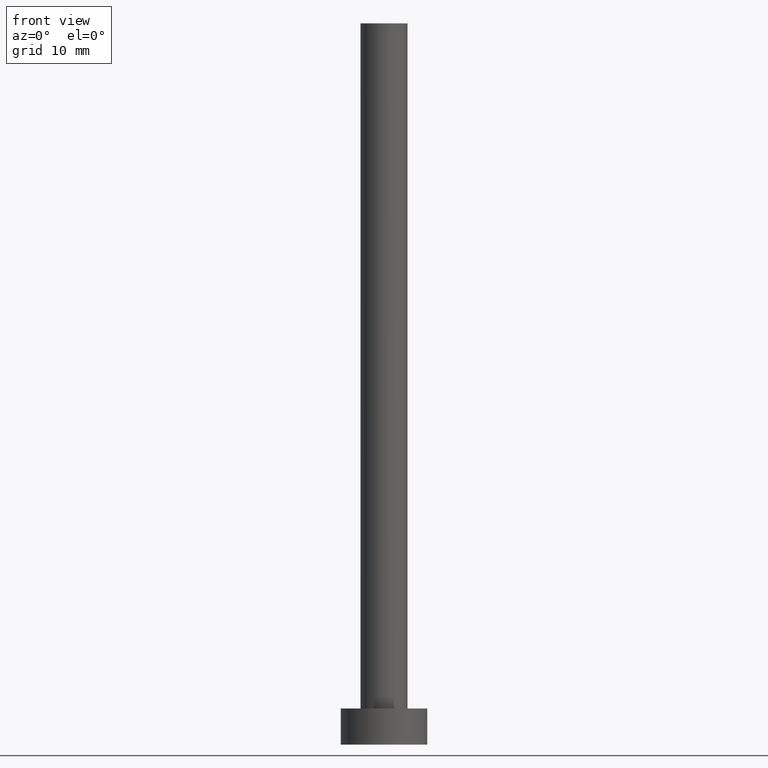
[diagram: clean part render]
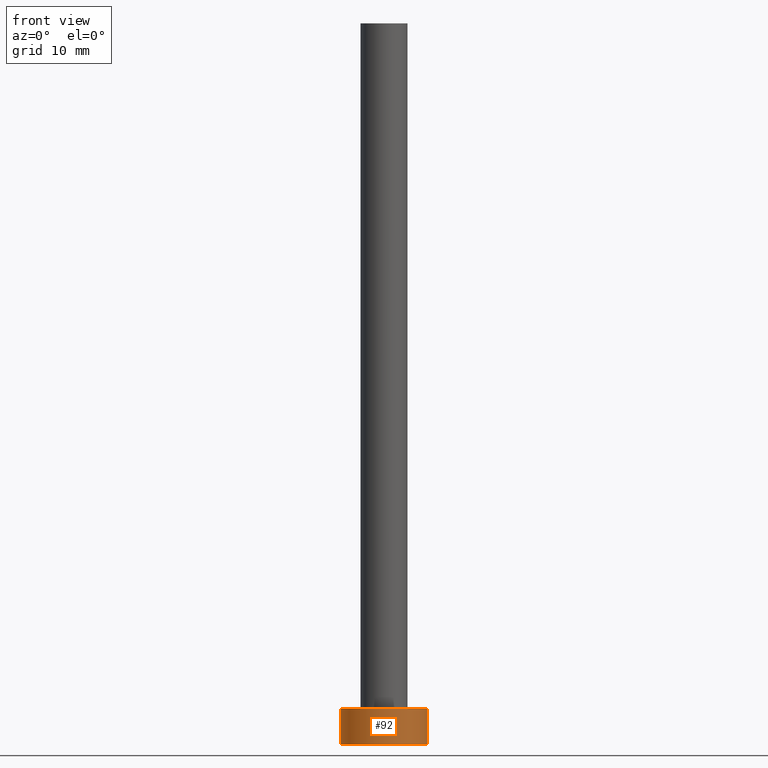
[diagram: same view with one face highlighted and labeled with its STEP entity id]
A machine part, front view. The second image highlights one B-rep face of the part: STEP entity #92.
In plain terms, the highlighted cylindrical surface (partial cylindrical patch) has radius 6 mm, axis along (-0, -0, -1).
Its self-contained STEP definition (entity closure, byte-faithful):
#17 = CARTESIAN_POINT ( 'NONE',  ( -6.000000000000000888, 0.000000000000000000, 5.000000000000000000 ) ) ;
#21 = ORIENTED_EDGE ( 'NONE', *, *, #33, .T. ) ;
#25 = DIRECTION ( 'NONE',  ( -0.000000000000000000, -0.000000000000000000, -1.000000000000000000 ) ) ;
#32 = CARTESIAN_POINT ( 'NONE',  ( 0.000000000000000000, 0.000000000000000000, 0.000000000000000000 ) ) ;
#33 = EDGE_CURVE ( 'NONE', #189, #51, #47, .T. ) ;
#36 = VERTEX_POINT ( 'NONE', #232 ) ;
#37 = CYLINDRICAL_SURFACE ( 'NONE', #214, 6.000000000000000888 ) ;
#39 = EDGE_CURVE ( 'NONE', #36, #189, #77, .T. ) ;
#41 = VECTOR ( 'NONE', #25, 1000.000000000000000 ) ;
#47 = CIRCLE ( 'NONE', #188, 6.000000000000000888 ) ;
#51 = VERTEX_POINT ( 'NONE', #229 ) ;
#75 = ORIENTED_EDGE ( 'NONE', *, *, #199, .F. ) ;
#77 = LINE ( 'NONE', #17, #141 ) ;
#85 = AXIS2_PLACEMENT_3D ( 'NONE', #171, #159, #103 ) ;
#92 = ADVANCED_FACE ( 'NONE', ( #184 ), #37, .T. ) ;
#100 = ORIENTED_EDGE ( 'NONE', *, *, #160, .F. ) ;
#103 = DIRECTION ( 'NONE',  ( 1.000000000000000000, 0.000000000000000000, 0.000000000000000000 ) ) ;
#106 = CARTESIAN_POINT ( 'NONE',  ( -6.000000000000000888, 0.000000000000000000, 0.000000000000000000 ) ) ;
#109 = CIRCLE ( 'NONE', #85, 6.000000000000000888 ) ;
#117 = ORIENTED_EDGE ( 'NONE', *, *, #39, .T. ) ;
#141 = VECTOR ( 'NONE', #234, 1000.000000000000000 ) ;
#157 = CARTESIAN_POINT ( 'NONE',  ( 6.000000000000000888, 7.347880794884120722E-16, 5.000000000000000000 ) ) ;
#159 = DIRECTION ( 'NONE',  ( 0.000000000000000000, 0.000000000000000000, 1.000000000000000000 ) ) ;
#160 = EDGE_CURVE ( 'NONE', #36, #204, #109, .T. ) ;
#164 = DIRECTION ( 'NONE',  ( -0.000000000000000000, -0.000000000000000000, -1.000000000000000000 ) ) ;
#171 = CARTESIAN_POINT ( 'NONE',  ( 0.000000000000000000, 0.000000000000000000, 5.000000000000000000 ) ) ;
#174 = LINE ( 'NONE', #157, #41 ) ;
#184 = FACE_OUTER_BOUND ( 'NONE', #190, .T. ) ;
#187 = DIRECTION ( 'NONE',  ( 1.000000000000000000, 0.000000000000000000, 0.000000000000000000 ) ) ;
#188 = AXIS2_PLACEMENT_3D ( 'NONE', #32, #255, #187 ) ;
#189 = VERTEX_POINT ( 'NONE', #106 ) ;
#190 = EDGE_LOOP ( 'NONE', ( #75, #100, #117, #21 ) ) ;
#192 = CARTESIAN_POINT ( 'NONE',  ( 0.000000000000000000, 0.000000000000000000, 5.000000000000000000 ) ) ;
#199 = EDGE_CURVE ( 'NONE', #204, #51, #174, .T. ) ;
#204 = VERTEX_POINT ( 'NONE', #219 ) ;
#211 = DIRECTION ( 'NONE',  ( -1.000000000000000000, 0.000000000000000000, 0.000000000000000000 ) ) ;
#214 = AXIS2_PLACEMENT_3D ( 'NONE', #192, #164, #211 ) ;
#219 = CARTESIAN_POINT ( 'NONE',  ( 6.000000000000000888, 7.347880794884120722E-16, 5.000000000000000000 ) ) ;
#229 = CARTESIAN_POINT ( 'NONE',  ( 6.000000000000000888, 7.347880794884120722E-16, 0.000000000000000000 ) ) ;
#232 = CARTESIAN_POINT ( 'NONE',  ( -6.000000000000000888, 0.000000000000000000, 5.000000000000000000 ) ) ;
#234 = DIRECTION ( 'NONE',  ( -0.000000000000000000, -0.000000000000000000, -1.000000000000000000 ) ) ;
#255 = DIRECTION ( 'NONE',  ( 0.000000000000000000, 0.000000000000000000, 1.000000000000000000 ) ) ;